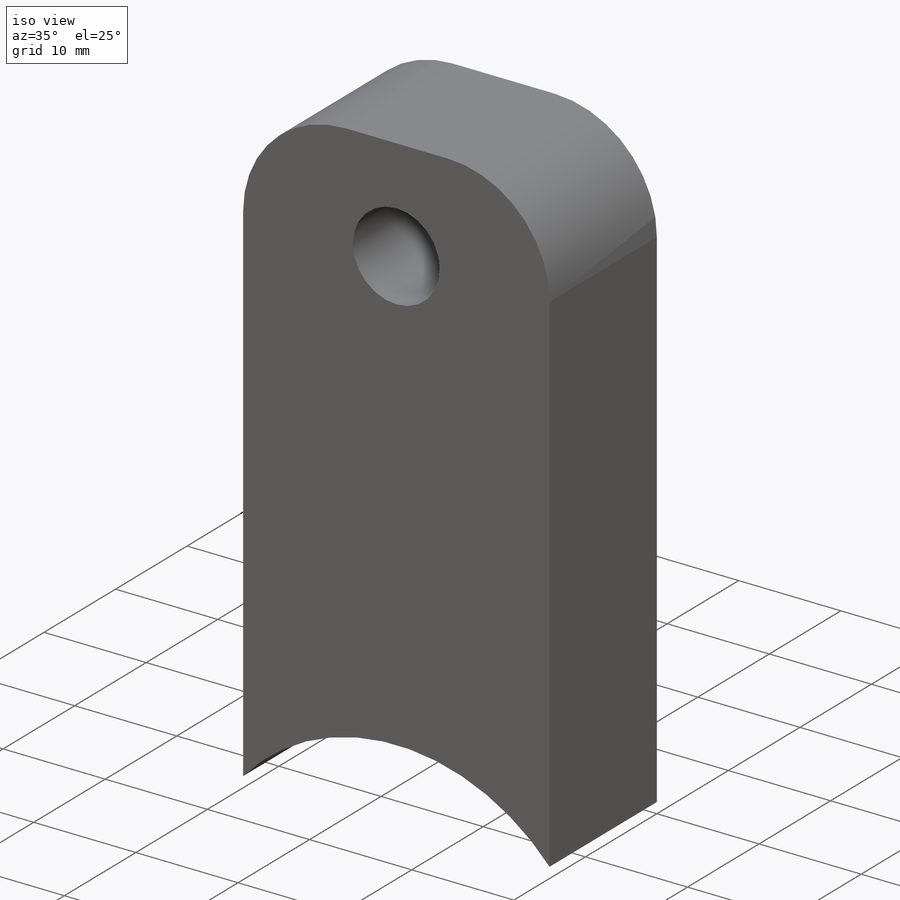
[diagram: iso view]
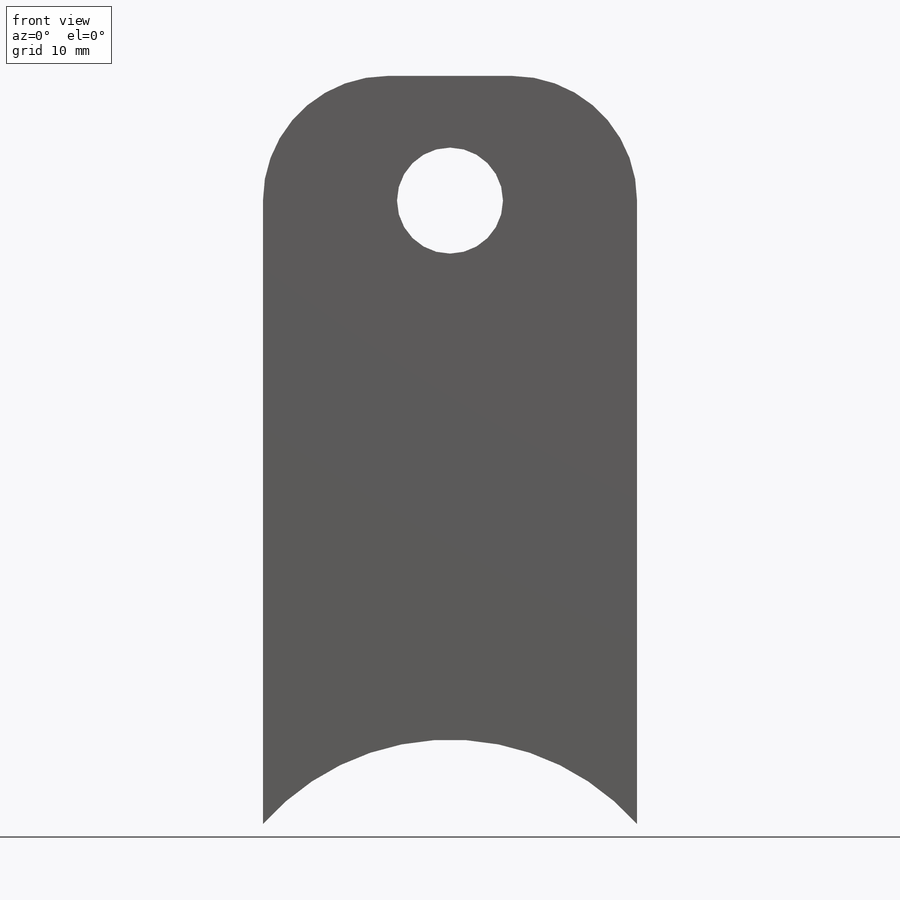
[diagram: front view]
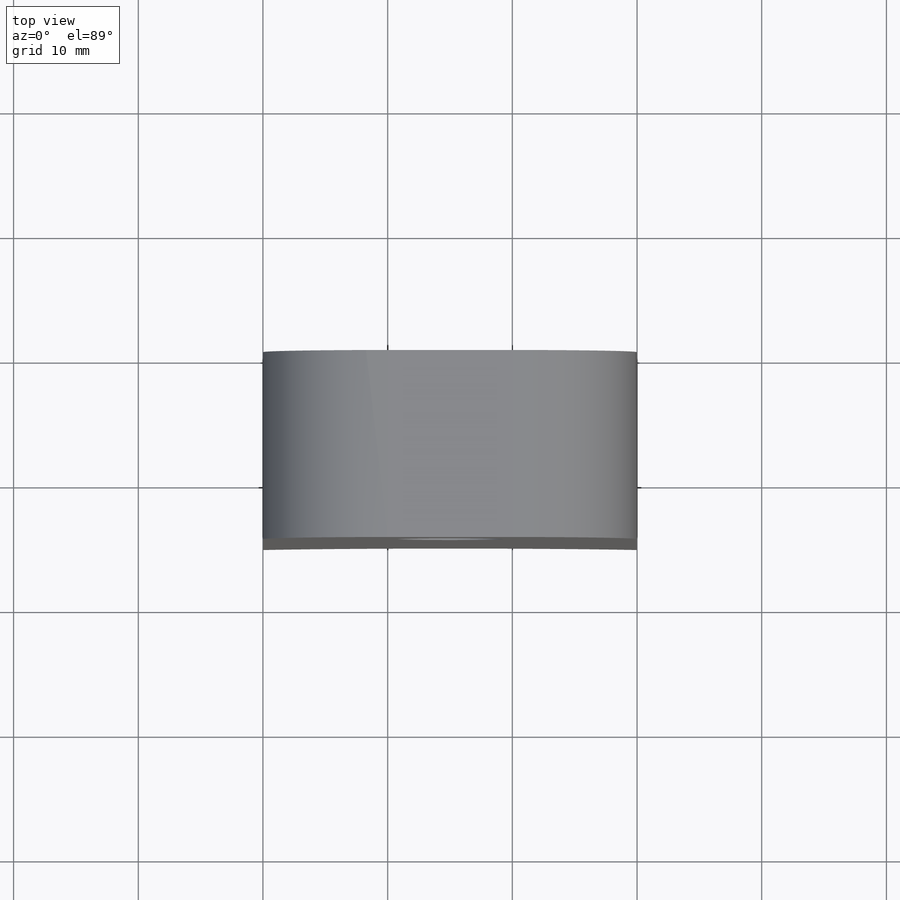
[diagram: top view]
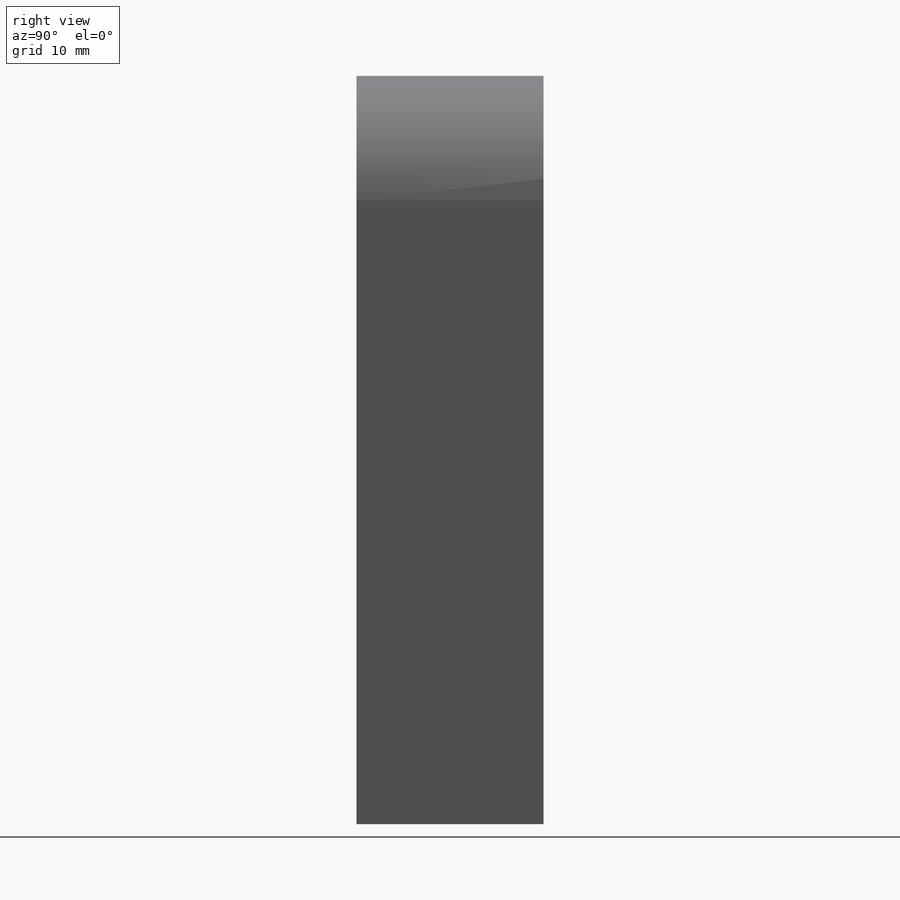
[diagram: right view]
SOLIDWORKS PART (.sldprt)
format: sldprt  version: not decoded by parser v0  size: 318,976 bytes
history: native  units: mm
features: plane x3, sketch x3, material x1, extrude x1, hole x1, thread x1, fillet x1 (+10 scaffold rows collapsed)
feature tree (21):
  scaffold x10  (default folders/planes/origin — collapsed)
  material  "Matériau <non spécifié>"
  plane  "Plan de face"
  plane  "Plan de dessus"
  plane  "Plan de droite"
  sketch  "Esquisse1"  dims[c1.D3=~21.213203mm c1.D1=60.0mm c1.D2=60.0mm c2.D3=30.0mm c2.D4=~36.739459mm c3.D3=~14.92841mm]
  extrude  "Boss.-Extru.1"  Depth=15mm
  hole  "Trou taraudé M101"  Diameter=8.5mm Depth=15mm
  sketch  "Esquisse3"  dims[D1=10.0mm D2=15.0mm]
  sketch  "Esquisse4"  dims[hole-wizard template sketch: 59 standard entries collapsed; hole parameters kept: c18.Diamètre du trou pour taraudage jusqu'au prochain=8.5mm c18.Profondeur du trou pour taraudage jusqu'au prochain=15.0mm]
  thread  "Filetage de perçage1"  Diameter=10mm  [1 undecoded]
  fillet  "Congé1"  Radius=10mm
decode coverage: 7 of 7 modeling features carry decoded parameters
note: ~ marks probable driven/reference dimensions
note: 1 parameter value undecoded
note: suppression state not decoded; provenance and decode notes live in map.json
